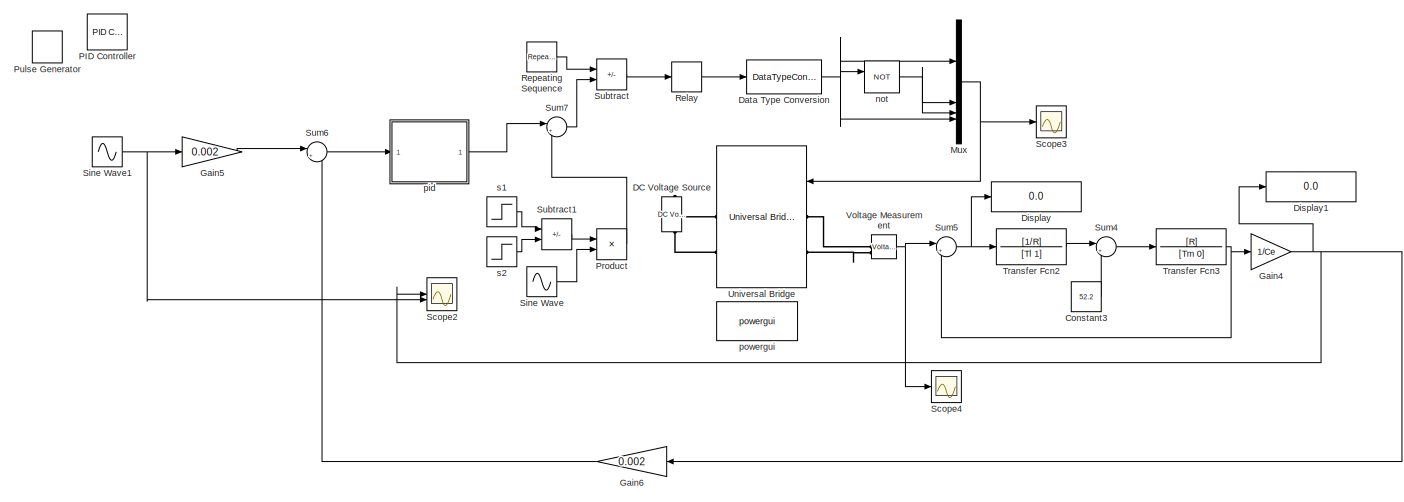
[diagram: root canvas - part 1/3, left side, full height]
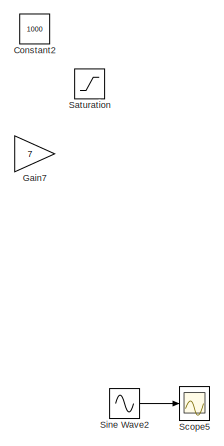
[diagram: root canvas - part 2/3, left side, full height]
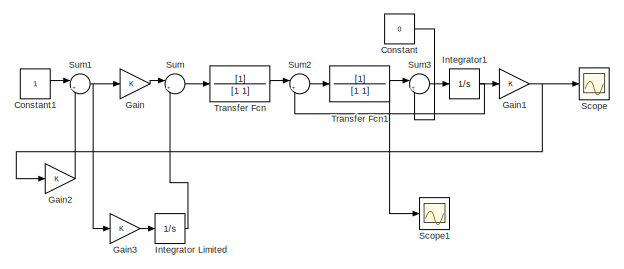
[diagram: root canvas - part 3/3, middle right region]
MODEL slx_f03d1a16502e
KIND model
CONFIG AbsTol = auto
CONFIG EnableMultiTasking = off
CONFIG FixedStep = auto
CONFIG MaxStep = 1e-6
CONFIG MinStep = auto
CONFIG RelTol = 1e-3
CONFIG SampleTimeConstraint = Unconstrained
CONFIG SolverName = VariableStepAuto
CONFIG StartTime = 0.0
CONFIG StopTime = 40
BLOCK [Constant] Constant
  Value = 0
BLOCK [Constant] Constant1
BLOCK [Constant] Constant2
  Value = 1000
BLOCK [Constant] Constant3
  Value = 52.2
BLOCK [Reference] DC Voltage Source  REF=spsDCVoltageSourceLib/DC Voltage Source
  LibrarySourceBlock = sps_lib/Sources/DC Voltage Source
  SourceBlock = spsDCVoltageSourceLib/DC Voltage Source
  SourceType = DC Voltage Source
BLOCK [DataTypeConversion] Data Type Conversion
  RndMeth = Floor
  SaturateOnIntegerOverflow = off
BLOCK [Display] Display
  Decimation = 1
BLOCK [Display] Display1
  Decimation = 1
BLOCK [Gain] Gain
BLOCK [Gain] Gain1
BLOCK [Gain] Gain2
BLOCK [Gain] Gain3
BLOCK [Gain] Gain4
  Gain = 1/Ce
BLOCK [Gain] Gain5
  Gain = 0.002
BLOCK [Gain] Gain6
  Gain = 0.002
  NameLocation = top
BLOCK [Gain] Gain7
  Gain = 7
BLOCK [Integrator] Integrator Limited
  LimitOutput = on
  LowerSaturationLimit = -10
  UpperSaturationLimit = 10
BLOCK [Integrator] Integrator1
BLOCK [Mux] Mux
  DisplayOption = bar
BLOCK [Reference] PID Controller  REF=slpidlib/PID Controller
  LibrarySourceBlock = simulink/Continuous/PID Controller
  SourceBlock = slpidlib/PID Controller
  SourceType = PID 1dof
BLOCK [Product] Product
BLOCK [DiscretePulseGenerator] Pulse Generator
  Period = 1/8000
  PulseType = Time based
  PulseWidth = 400/538/2*100+50
BLOCK [Relay] Relay
  OffOutputValue = 1
  OnOutputValue = 0
BLOCK [Reference] Repeating Sequence  REF=simulink/Sources/Repeating
Sequence
  SourceBlock = simulink/Sources/Repeating\nSequence
  SourceType = Repeating table
BLOCK [Saturate] Saturation
  LowerLimit = -5
  UpperLimit = 5
BLOCK [Scope] Scope
  Floating = off
  NumInputPorts = 1
  ScopeSpecificationString = Simulink.scopes.TimeScopeBlockCfg('CurrentConfiguration', extmgr.ConfigurationSet(extmgr.Configuration('Core','General UI',true),extmgr.Configuration('Core','Source UI',true),extmgr.Configuration('Sources','WiredSimulink',true),extmgr.Configuration('Visuals','Time Domain',true,'SerializedDisplays',{struct('MinYLimReal','-0.21203','MaxYLimReal','1.90831','YLabelReal','','MinYLimMag','0.00000','MaxY...<+1325ch>
BLOCK [Scope] Scope1
  Floating = off
  NumInputPorts = 1
  ScopeSpecificationString = Simulink.scopes.TimeScopeBlockCfg('CurrentConfiguration', extmgr.ConfigurationSet(extmgr.Configuration('Core','General UI',true),extmgr.Configuration('Core','Source UI',true),extmgr.Configuration('Sources','WiredSimulink',true,'DataLoggingVariableName','ScopeData1'),extmgr.Configuration('Visuals','Time Domain',true),extmgr.Configuration('Tools','Plot Navigation',true),extmgr.Configuration('Tools',...<+40ch>
BLOCK [Scope] Scope2
  Floating = off
  NumInputPorts = 2
  ScopeSpecificationString = Simulink.scopes.TimeScopeBlockCfg('CurrentConfiguration', extmgr.ConfigurationSet(extmgr.Configuration('Core','General UI',true),extmgr.Configuration('Core','Source UI',true),extmgr.Configuration('Sources','WiredSimulink',true,'DataLoggingVariableName','ScopeData3','DataLoggingLimitDataPoints',true,'DataLoggingMaxPoints','50000000'),extmgr.Configuration('Visuals','Time Domain',true,'SerializedDisp...<+1599ch>
BLOCK [Scope] Scope3
  Floating = off
  NumInputPorts = 1
  ScopeSpecificationString = Simulink.scopes.TimeScopeBlockCfg('CurrentConfiguration', extmgr.ConfigurationSet(extmgr.Configuration('Core','General UI',true),extmgr.Configuration('Core','Source UI',true),extmgr.Configuration('Sources','WiredSimulink',true,'DataLoggingVariableName','ScopeData2'),extmgr.Configuration('Visuals','Time Domain',true,'SerializedDisplays',{struct('MinYLimReal','-0.125','MaxYLimReal','1.125','YLabelRe...<+1402ch>
BLOCK [Scope] Scope4
  Floating = off
  NumInputPorts = 1
  ScopeSpecificationString = Simulink.scopes.TimeScopeBlockCfg('CurrentConfiguration', extmgr.ConfigurationSet(extmgr.Configuration('Core','General UI',true),extmgr.Configuration('Core','Source UI',true),extmgr.Configuration('Sources','WiredSimulink',true,'DataLoggingVariableName','ScopeData4'),extmgr.Configuration('Visuals','Time Domain',true,'SerializedDisplays',{struct('MinYLimReal','-605.24999','MaxYLimReal','67.25','YLab...<+1384ch>
BLOCK [Scope] Scope5
  Floating = off
  NumInputPorts = 1
  ScopeSpecificationString = Simulink.scopes.TimeScopeBlockCfg('CurrentConfiguration', extmgr.ConfigurationSet(extmgr.Configuration('Core','General UI',true),extmgr.Configuration('Core','Source UI',true),extmgr.Configuration('Sources','WiredSimulink',true,'DataLoggingVariableName','ScopeData1','DataLoggingLimitDataPoints',true,'DataLoggingMaxPoints','5000000000'),extmgr.Configuration('Visuals','Time Domain',true,'SerializedDi...<+1720ch>
BLOCK [Sin] Sine Wave
  Amplitude = 0.5
  Frequency = pi
  SampleTime = 0
BLOCK [Sin] Sine Wave1
  Amplitude = 1000
  SampleTime = 0
BLOCK [Sin] Sine Wave2
  Amplitude = 1000
  SampleTime = 0
BLOCK [Sum] Subtract
  IconShape = rectangular
  Inputs = +-
BLOCK [Sum] Subtract1
  IconShape = rectangular
  Inputs = +-
BLOCK [Sum] Sum
  Inputs = |++
BLOCK [Sum] Sum1
  Inputs = |+-
BLOCK [Sum] Sum2
  Inputs = |+-
BLOCK [Sum] Sum3
  Inputs = |+-
BLOCK [Sum] Sum4
  Inputs = |+-
BLOCK [Sum] Sum5
  Inputs = |+-
BLOCK [Sum] Sum6
  Inputs = |+-
BLOCK [Sum] Sum7
  Inputs = |++
BLOCK [TransferFcn] Transfer Fcn
  Denominator = [1 1]
BLOCK [TransferFcn] Transfer Fcn1
  Denominator = [1 1]
BLOCK [TransferFcn] Transfer Fcn2
  Denominator = [Tl  1]
  Numerator = [1/R]
BLOCK [TransferFcn] Transfer Fcn3
  Denominator = [Tm 0]
  Numerator = [R]
BLOCK [Reference] Universal Bridge  REF=spsUniversalBridgeLib/Universal Bridge
  LibrarySourceBlock = sps_lib/Power Electronics/Universal Bridge
  SourceBlock = spsUniversalBridgeLib/Universal Bridge
  SourceType = Universal Bridge
BLOCK [Reference] Voltage Measurement  REF=spsVoltageMeasurementLib/Voltage Measurement
  LibrarySourceBlock = sps_lib/Sensors and Measurements/Voltage Measurement
  SourceBlock = spsVoltageMeasurementLib/Voltage Measurement
  SourceType = Voltage Measurement
  UserDataPersistent = on
BLOCK [Logic] not
  AllPortsSameDT = off
  IconShape = distinctive
  Operator = NOT
  OutDataTypeStr = boolean
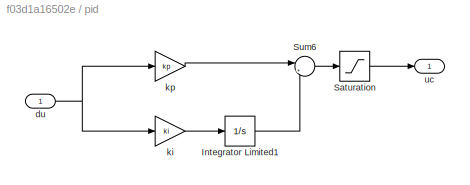
BLOCK [SubSystem] pid
BLOCK [Integrator] pid/Integrator Limited1
  LimitOutput = on
  LowerSaturationLimit = -5
  UpperSaturationLimit = 5
BLOCK [Saturate] pid/Saturation
  LowerLimit = -5
  UpperLimit = 5
BLOCK [Sum] pid/Sum6
  Inputs = |++
BLOCK [Inport] pid/du
BLOCK [Gain] pid/ki
  Gain = ki
BLOCK [Gain] pid/kp
  Gain = kp
BLOCK [Outport] pid/uc
BLOCK [Reference] powergui  REF=spspowerguiLib/powergui
  Priority = 1
  SourceBlock = spspowerguiLib/powergui
  SourceType = PSB option menu block
BLOCK [Step] s1
  SampleTime = 0
  Time = 20
BLOCK [Step] s2
  SampleTime = 0
  Time = 30
LINE Constant1:1 -> Sum1:1
LINE Constant3:1 -> Sum4:2
LINE Constant:1 -> Sum3:2
NET Data Type Conversion:1 -> Mux:1, Mux:4, not:1
NET Gain1:1 -> Gain2:1, Scope:1
LINE Gain2:1 -> Sum1:2
LINE Gain3:1 -> Integrator Limited:1
NET Gain4:1 -> Display1:1, Gain6:1, Scope2:1
LINE Gain5:1 -> Sum6:1
LINE Gain6:1 -> Sum6:2
LINE Gain:1 -> Sum:1
LINE Integrator Limited:1 -> Sum:2
NET Integrator1:1 -> Gain1:1, Sum2:2
NET Mux:1 -> Scope3:1, Universal Bridge:1
LINE Product:1 -> Sum7:2
LINE Relay:1 -> Data Type Conversion:1
LINE Repeating Sequence:1 -> Subtract:1
NET Sine Wave1:1 -> Gain5:1, Scope2:2
LINE Sine Wave2:1 -> Scope5:1
LINE Sine Wave:1 -> Product:2
LINE Subtract1:1 -> Product:1
LINE Subtract:1 -> Relay:1
NET Sum1:1 -> Gain3:1, Gain:1
LINE Sum2:1 -> Transfer Fcn1:1
LINE Sum3:1 -> Integrator1:1
LINE Sum4:1 -> Transfer Fcn3:1
NET Sum5:1 -> Display:1, Transfer Fcn2:1
LINE Sum6:1 -> pid:1
LINE Sum7:1 -> Subtract:2
LINE Sum:1 -> Transfer Fcn:1
NET Transfer Fcn1:1 -> Scope1:1, Sum3:1
LINE Transfer Fcn2:1 -> Sum4:1
NET Transfer Fcn3:1 -> Gain4:1, Sum5:2
LINE Transfer Fcn:1 -> Sum2:1
NET Voltage Measurement:1 -> Scope4:1, Sum5:1
NET not:1 -> Mux:2, Mux:3
LINE pid/Integrator Limited1:1 -> pid/Sum6:2
LINE pid/Saturation:1 -> pid/uc:1
LINE pid/Sum6:1 -> pid/Saturation:1
NET pid/du:1 -> pid/ki:1, pid/kp:1
LINE pid/ki:1 -> pid/Integrator Limited1:1
LINE pid/kp:1 -> pid/Sum6:1
LINE pid:1 -> Sum7:1
LINE s1:1 -> Subtract1:1
LINE s2:1 -> Subtract1:2
PLINE DC Voltage Source:LConn1 -- Universal Bridge:RConn2
PLINE DC Voltage Source:RConn1 -- Universal Bridge:RConn1
PLINE Universal Bridge:LConn1 -- Voltage Measurement:LConn1
PLINE Universal Bridge:LConn2 -- Voltage Measurement:LConn2
note: NET lines group one-source signal fan-out (src -> all destinations, sorted); 1:1 wires keep LINE
